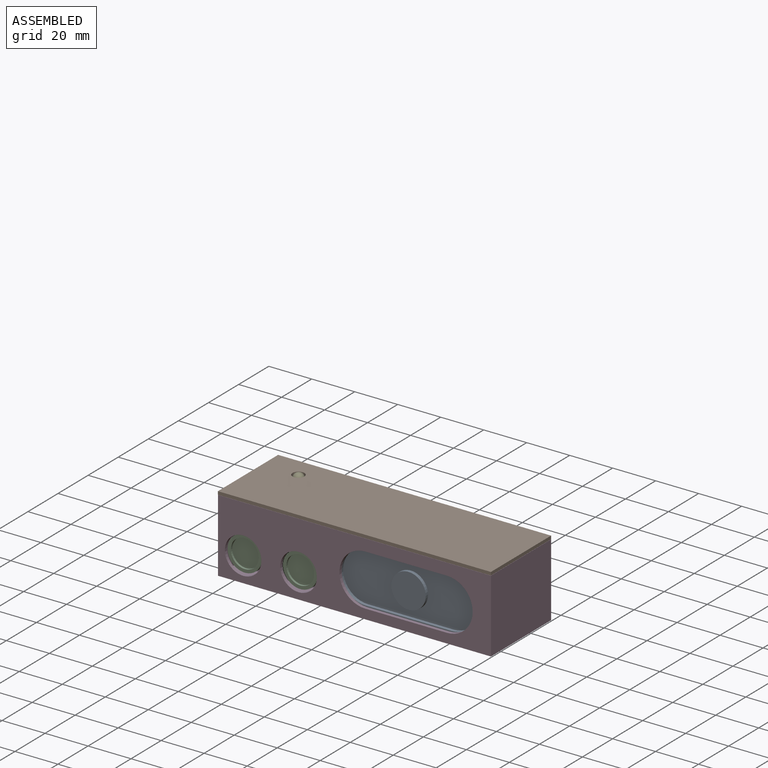
[diagram: assembled view]
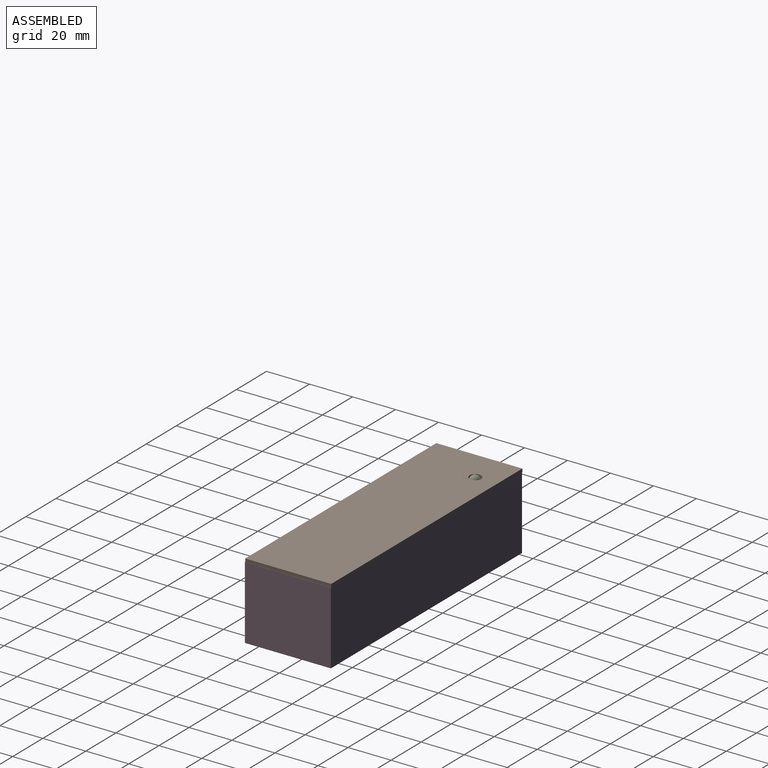
[diagram: assembled view, second angle]
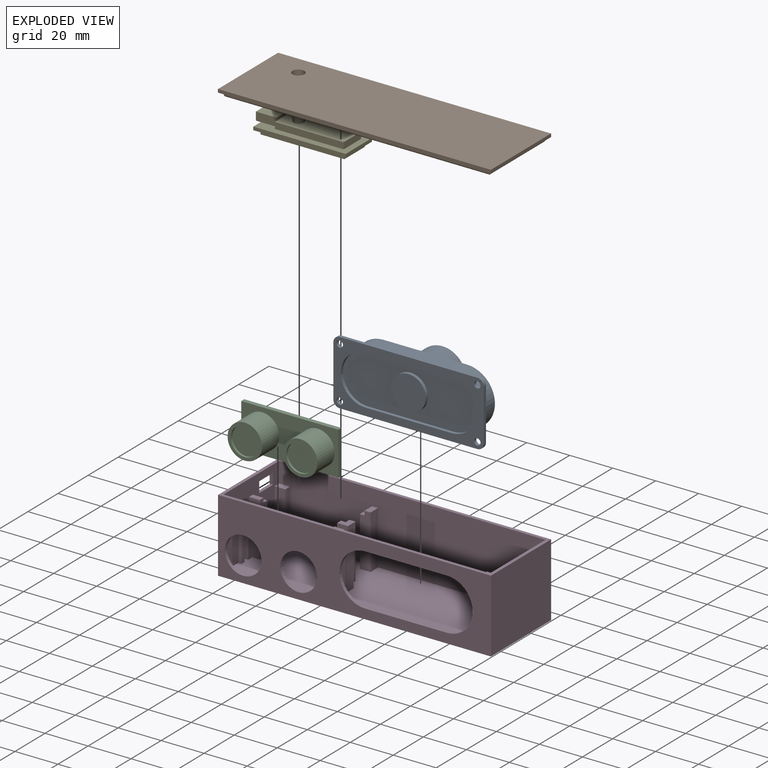
[diagram: exploded view]
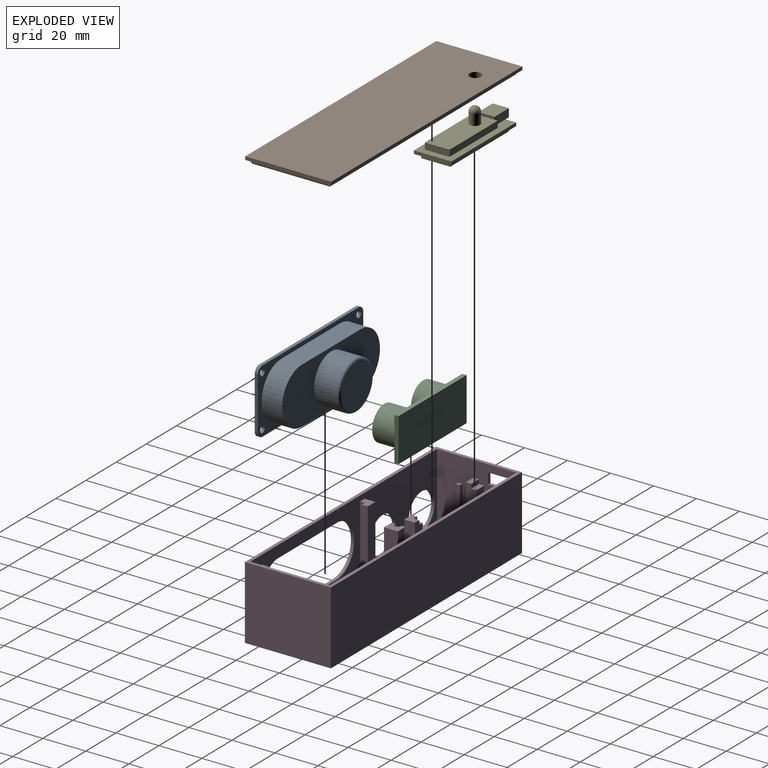
[diagram: exploded view, second angle]
ASSEMBLY  parts=5 mates=4
PART A: 29 faces, bbox 70x30x23 mm
  f0: plane 24x1.5mm, normal (1,0,0), area 36mm2, adj f4,f5,f10,f13
  f1: plane 64x1.5mm, normal (0,1,0), area 96mm2, adj f4,f5,f10,f11
  f2: plane 24x1.5mm, normal (-1,0,0), area 36mm2, adj f4,f5,f11,f12
  f3: plane 64x1.5mm, normal (0,-1,0), area 96mm2, adj f4,f5,f12,f13
  f4: plane 70x30mm, normal (0,0,1), area 728.5mm2, adj f0,f1,f2,f3,f6,f7,f8,f9
  f5: plane 70x30mm, normal (0,0,-1), area 519.1mm2, adj f0,f1,f2,f3,f6,f7,f8,f9
  f6: cylinder r=1.5mm len=3mm, axis (0,0,1), area 14.1mm2, adj f4,f5
  f7: cylinder r=1.5mm len=3mm, axis (0,0,1), area 14.1mm2, adj f4,f5
  f8: cylinder r=1.5mm len=3mm, axis (0,0,1), area 14.1mm2, adj f4,f5
  f9: cylinder r=1.5mm len=3mm, axis (0,0,1), area 14.1mm2, adj f4,f5
  f10: cylinder r=3mm len=3mm, axis (0,0,1), area 7.1mm2, adj f0,f1,f4,f5
  f11: cylinder r=3mm len=3mm, axis (0,0,-1), area 7.1mm2, adj f1,f2,f4,f5
  f12: cylinder r=3mm len=3mm, axis (0,0,1), area 7.1mm2, adj f2,f3,f4,f5
  f13: cylinder r=3mm len=3mm, axis (0,0,-1), area 7.1mm2, adj f0,f3,f4,f5
  f14: plane 40x1.5mm, normal (0,-1,0), area 60mm2, adj f4,f15,f17,f23
  f15: cylinder r=11.5mm len=23mm, axis (0,0,1), area 54.2mm2, adj f4,f14,f16,f23
  f16: plane 40x1.5mm, normal (0,1,0), area 60mm2, adj f4,f15,f17,f23
  f17: cylinder r=11.5mm len=23mm, axis (0,0,1), area 54.2mm2, adj f4,f14,f16,f23
  f18: plane 65x26mm, normal (0,0,-1), area 1147.3mm2, adj f19,f20,f21,f22,f24
  f19: cylinder r=13mm len=26mm, axis (0,0,1), area 388mm2, adj f5,f18,f20,f22
  f20: plane 39x9.5mm, normal (0,1,0), area 370.5mm2, adj f5,f18,f19,f21
  f21: cylinder r=13mm len=26mm, axis (0,0,1), area 388mm2, adj f5,f18,f20,f22
  f22: plane 39x9.5mm, normal (0,-1,0), area 370.5mm2, adj f5,f18,f19,f21
  f23: plane 63x23mm, normal (0,0,1), area 1134.4mm2, adj f14,f15,f16,f17,f27
  f24: cylinder r=11.25mm len=22.5mm, axis (0,0,1), area 777.5mm2, adj f18,f26
  f25: plane 20.5x20.5mm, normal (0,0,-1), area 330.1mm2, adj f26
  f26: torus R=10.25mm, axis (0,0,-1), area 107.4mm2, adj f24,f25
  f27: cylinder r=8mm len=16mm, axis (0,0,-1), area 75.4mm2, adj f23,f28
  f28: plane 16x16mm, normal (0,0,1), area 201.1mm2, adj f27
PART B: 16 faces, bbox 127x40x3.5 mm
  f0: plane 127x40mm, normal (0,0,1), area 524.2mm2, adj f1,f2,f3,f4,f6,f7,f8,f9
  f1: plane 40x1.5mm, normal (1,0,0), area 60mm2, adj f0,f2,f4,f5
  f2: plane 127x1.5mm, normal (0,1,0), area 190.5mm2, adj f0,f1,f3,f5
  f3: plane 40x1.5mm, normal (-1,0,0), area 60mm2, adj f0,f2,f4,f5
  f4: plane 127x1.5mm, normal (0,-1,0), area 190.5mm2, adj f0,f1,f3,f5
  f5: plane 127x40mm, normal (0,0,-1), area 5056.2mm2, adj f1,f2,f3,f4,f11
  f6: plane 36.8x1mm, normal (1,0,0), area 36.8mm2, adj f0,f7,f9,f12
  f7: plane 123.8x1mm, normal (0,1,0), area 123.8mm2, adj f0,f6,f8,f13
  f8: plane 36.8x1mm, normal (-1,0,0), area 36.8mm2, adj f0,f7,f9,f15
  f9: plane 123.8x1mm, normal (0,-1,0), area 123.8mm2, adj f0,f6,f8,f14
  f10: plane 121.8x34.8mm, normal (0,0,1), area 4214.9mm2, adj f11,f12,f13,f14,f15
  f11: cylinder r=2.75mm len=5.5mm, axis (0,0,1), area 60.5mm2, adj f5,f10
  f12: cylinder r=1mm len=36.8mm, axis (0,-1,0), area 56.7mm2, adj f6,f10,f13,f14
  f13: cylinder r=1mm len=123.8mm, axis (1,0,0), area 193.3mm2, adj f7,f10,f12,f15
  f14: cylinder r=1mm len=123.8mm, axis (-1,0,0), area 193.3mm2, adj f9,f10,f12,f15
  f15: cylinder r=1mm len=36.8mm, axis (0,1,0), area 56.7mm2, adj f8,f10,f13,f14
PART C: 14 faces, bbox 45.2x20.2x13.5 mm
  f0: plane 20.2x2mm, normal (1,0,0), area 40.4mm2, adj f1,f3,f4,f5
  f1: plane 45.2x2mm, normal (0,1,0), area 90.4mm2, adj f0,f2,f4,f5
  f2: plane 20.2x2mm, normal (-1,0,0), area 40.4mm2, adj f1,f3,f4,f5
  f3: plane 45.2x2mm, normal (0,-1,0), area 90.4mm2, adj f0,f2,f4,f5
  f4: plane 45.2x20.2mm, normal (0,0,1), area 510.9mm2, adj f0,f1,f2,f3,f6,f8
  f5: plane 45.2x20.2mm, normal (0,0,-1), area 913mm2, adj f0,f1,f2,f3
  f6: cylinder r=8mm len=16mm, axis (0,0,-1), area 578.1mm2, adj f4,f7
  f7: plane 16x16mm, normal (0,0,1), area 68.3mm2, adj f6,f10
  f8: cylinder r=8mm len=16mm, axis (0,0,-1), area 578.1mm2, adj f4,f9
  f9: plane 16x16mm, normal (0,0,1), area 68.3mm2, adj f8,f12
  f10: cylinder r=6.5mm len=13mm, axis (0,0,1), area 40.8mm2, adj f7,f11
  f11: plane 13x13mm, normal (0,0,1), area 132.7mm2, adj f10
  f12: cylinder r=6.5mm len=13mm, axis (0,0,1), area 40.8mm2, adj f9,f13
  f13: plane 13x13mm, normal (0,0,1), area 132.7mm2, adj f12
PART D: 72 faces, bbox 127x40x34 mm
  f0: plane 40x34mm, normal (-1,0,0), area 1315mm2, adj f11,f13,f15,f16,f68,f69,f70,f71
  f1: plane 37x32.5mm, normal (1,0,0), area 884.5mm2, adj f3,f5,f9,f10,f13,f17,f18,f19
  f2: plane 5x2.8mm, normal (0,0,1), area 14mm2, adj f7,f17,f55,f64
  f3: plane 23x5mm, normal (0,-1,0), area 115mm2, adj f1,f4,f9,f67
  f4: plane 23x3mm, normal (1,0,0), area 69mm2, adj f3,f9,f17,f67
  f5: plane 23x5mm, normal (0,1,0), area 115mm2, adj f1,f9,f53,f65
  f6: plane 23x5mm, normal (-1,0,0), area 115mm2, adj f7,f9,f17,f63
  f7: plane 25x5mm, normal (0,-1,0), area 120.6mm2, adj f2,f6,f9,f55,f63,f64
  f8: plane 25x5mm, normal (0,1,0), area 120.6mm2, adj f9,f56,f58,f59,f60,f62
  f9: plane 124x37mm, normal (0,0,1), area 4422.6mm2, adj f1,f3,f4,f5,f6,f7,f8,f10
  f10: plane 124x32.5mm, normal (0,1,0), area 2035mm2, adj f1,f9,f12,f13,f35,f36,f37,f38
  f11: plane 127x34mm, normal (0,-1,0), area 2499.7mm2, adj f0,f13,f14,f16,f35,f36,f48,f49
  f12: plane 37x32.5mm, normal (-1,0,0), area 1052.5mm2, adj f9,f10,f13,f17,f43,f44
  f13: plane 127x40mm, normal (0,0,1), area 492mm2, adj f0,f1,f10,f11,f12,f14,f15,f17
  f14: plane 40x34mm, normal (1,0,0), area 1360mm2, adj f11,f13,f15,f16
  f15: plane 127x34mm, normal (0,1,0), area 4318mm2, adj f0,f13,f14,f16
  f16: plane 127x40mm, normal (0,0,-1), area 5080mm2, adj f0,f11,f14,f15
  f17: plane 124x32.5mm, normal (0,-1,0), area 3794.4mm2, adj f1,f2,f4,f6,f9,f12,f13,f55
  f18: plane 21x1.5mm, normal (0,1,0), area 31.5mm2, adj f1,f9,f20,f21
  f19: plane 21x1.5mm, normal (0,-1,0), area 31.5mm2, adj f1,f9,f20,f21
  f20: plane 21x2mm, normal (1,0,0), area 42mm2, adj f9,f18,f19,f21
  f21: plane 2x1.5mm, normal (0,0,1), area 3mm2, adj f1,f18,f19,f20
  f22: plane 21x1.5mm, normal (0,1,0), area 31.5mm2, adj f1,f9,f24,f25
  f23: plane 21x1.5mm, normal (0,-1,0), area 31.5mm2, adj f1,f9,f24,f25
  f24: plane 21x2mm, normal (1,0,0), area 42mm2, adj f9,f22,f23,f25
  f25: plane 2x1.5mm, normal (0,0,1), area 3mm2, adj f1,f22,f23,f24
  f26: plane 21x6.5mm, normal (1,0,0), area 136.5mm2, adj f9,f27,f33,f34
  f27: plane 21x5mm, normal (0,1,0), area 105mm2, adj f9,f26,f28,f34
  f28: plane 21x2mm, normal (-1,0,0), area 42mm2, adj f9,f27,f29,f34
  f29: plane 21x1.5mm, normal (0,-1,0), area 31.5mm2, adj f9,f28,f30,f34
  f30: plane 21x2.5mm, normal (-1,0,0), area 52.5mm2, adj f9,f29,f31,f34
  f31: plane 21x1.5mm, normal (0,1,0), area 31.5mm2, adj f9,f30,f32,f34
  f32: plane 21x2mm, normal (-1,0,0), area 42mm2, adj f9,f31,f33,f34
  f33: plane 21x5mm, normal (0,-1,0), area 105mm2, adj f9,f26,f32,f34
  f34: plane 6.5x5mm, normal (0,0,1), area 28.7mm2, adj f26,f27,f28,f29,f30,f31,f32,f33
  f35: cylinder r=8.5mm len=17mm, axis (0,-1,0), area 80.1mm2, adj f10,f11
  f36: cylinder r=8.5mm len=17mm, axis (0,-1,0), area 80.1mm2, adj f10,f11
  f37: plane 30x5mm, normal (-1,0,0), area 150mm2, adj f9,f10,f41,f42
  f38: plane 30x2.2mm, normal (1,0,0), area 66mm2, adj f9,f10,f39,f42
  f39: plane 30x2mm, normal (0,-1,0), area 60mm2, adj f9,f38,f40,f42
  f40: plane 30x2.8mm, normal (1,0,0), area 84mm2, adj f9,f39,f41,f42
  f41: plane 30x5mm, normal (0,1,0), area 150mm2, adj f9,f37,f40,f42
  f42: plane 5x5mm, normal (0,0,1), area 20.6mm2, adj f10,f37,f38,f39,f40,f41
  f43: plane 30x4.89mm, normal (0,1,0), area 146.6mm2, adj f9,f12,f44,f45
  f44: plane 5x4.89mm, normal (0,0,1), area 20mm2, adj f10,f12,f43,f45,f46,f47
  f45: plane 30x2.8mm, normal (-1,0,0), area 84mm2, adj f9,f43,f44,f46
  f46: plane 30x2mm, normal (0,-1,0), area 60mm2, adj f9,f44,f45,f47
  f47: plane 30x2.2mm, normal (-1,0,0), area 66mm2, adj f9,f10,f44,f46
  f48: plane 38x1.5mm, normal (0,0,-1), area 57mm2, adj f10,f11,f49,f51
  f49: cylinder r=12mm len=24mm, axis (0,-1,0), area 56.5mm2, adj f10,f11,f48,f50
  f50: plane 38x1.5mm, normal (0,0,1), area 57mm2, adj f10,f11,f49,f51
  f51: cylinder r=12mm len=24mm, axis (0,-1,0), area 56.5mm2, adj f10,f11,f48,f50
  f52: plane 25x5mm, normal (0,-1,0), area 125mm2, adj f1,f9,f53,f54
  f53: plane 25x5mm, normal (1,0,0), area 120mm2, adj f5,f9,f52,f54,f65,f66
  f54: plane 5x2.5mm, normal (0,0,1), area 12.5mm2, adj f1,f52,f53,f66
  f55: plane 25x5mm, normal (1,0,0), area 125mm2, adj f2,f7,f9,f17
  f56: plane 25x5mm, normal (-1,0,0), area 120mm2, adj f8,f9,f57,f59,f60,f61
  f57: plane 25x5mm, normal (0,-1,0), area 125mm2, adj f9,f56,f58,f59
  f58: plane 25x5mm, normal (1,0,0), area 125mm2, adj f8,f9,f57,f59
  f59: plane 5x5mm, normal (0,0,1), area 19.5mm2, adj f8,f56,f57,f58,f61,f62
  f60: plane 2.5x2.2mm, normal (0,0,1), area 5.5mm2, adj f8,f56,f61,f62
  f61: plane 2.2x2mm, normal (0,1,0), area 4.4mm2, adj f56,f59,f60,f62
  f62: plane 2.5x2mm, normal (-1,0,0), area 5mm2, adj f8,f59,f60,f61
  f63: plane 5x2.2mm, normal (0,0,1), area 11mm2, adj f6,f7,f17,f64
  f64: plane 5x2mm, normal (-1,0,0), area 10mm2, adj f2,f7,f17,f63
  f65: plane 5x2.5mm, normal (0,0,1), area 12.5mm2, adj f1,f5,f53,f66
  f66: plane 5x2mm, normal (0,1,0), area 10mm2, adj f1,f53,f54,f65
  f67: plane 5x3mm, normal (0,0,1), area 15mm2, adj f1,f3,f4,f17
  f68: plane 5x1.5mm, normal (0,1,0), area 7.5mm2, adj f0,f1,f69,f71
  f69: plane 9x1.5mm, normal (0,0,-1), area 13.5mm2, adj f0,f1,f68,f70
  f70: plane 5x1.5mm, normal (0,-1,0), area 7.5mm2, adj f0,f1,f69,f71
  f71: plane 9x1.5mm, normal (0,0,1), area 13.5mm2, adj f0,f1,f68,f70
PART E: 24 faces, bbox 45.3x17.5x14 mm
  f0: plane 43x17.5mm, normal (0,0,1), area 330.5mm2, adj f1,f2,f3,f4,f6,f7,f8,f12
  f1: plane 43x1.5mm, normal (0,1,0), area 64.5mm2, adj f0,f2,f4,f5
  f2: plane 17.5x1.5mm, normal (-1,0,0), area 26.3mm2, adj f0,f1,f3,f5
  f3: plane 43x1.5mm, normal (0,-1,0), area 64.5mm2, adj f0,f2,f4,f5
  f4: plane 17.5x1.5mm, normal (1,0,0), area 26.3mm2, adj f0,f1,f3,f5,f11
  f5: plane 43x17.5mm, normal (0,0,-1), area 226mm2, adj f1,f2,f3,f4,f17,f18,f19,f20
  f6: plane 9.5x3.8mm, normal (0,1,0), area 36.1mm2, adj f0,f7,f9,f10,f11
  f7: plane 7.5x3.8mm, normal (-1,0,0), area 28.5mm2, adj f0,f6,f8,f10
  f8: plane 9.5x3.8mm, normal (0,-1,0), area 36.1mm2, adj f0,f7,f9,f10,f11
  f9: plane 7.5x3.8mm, normal (1,0,0), area 28.5mm2, adj f6,f8,f10,f11
  f10: plane 9.5x7.5mm, normal (0,0,1), area 71.3mm2, adj f6,f7,f8,f9
  f11: plane 7.5x2.3mm, normal (0,0,-1), area 17.3mm2, adj f4,f6,f8,f9
  f12: plane 32x3mm, normal (0,1,0), area 96mm2, adj f0,f13,f15,f16
  f13: plane 11.5x3mm, normal (-1,0,0), area 34.5mm2, adj f0,f12,f14,f16
  f14: plane 32x3mm, normal (0,-1,0), area 96mm2, adj f0,f13,f15,f16
  f15: plane 11.5x3mm, normal (1,0,0), area 34.5mm2, adj f0,f12,f14,f16
  f16: plane 32x11.5mm, normal (0,0,1), area 349.9mm2, adj f12,f13,f14,f15,f22
  f17: plane 39x2mm, normal (0,-1,0), area 78mm2, adj f5,f18,f20,f21
  f18: plane 13.5x2mm, normal (-1,0,0), area 27mm2, adj f5,f17,f19,f21
  f19: plane 39x2mm, normal (0,1,0), area 78mm2, adj f5,f18,f20,f21
  f20: plane 13.5x2mm, normal (1,0,0), area 27mm2, adj f5,f17,f19,f21
  f21: plane 39x13.5mm, normal (0,0,-1), area 526.5mm2, adj f17,f18,f19,f20
  f22: cylinder r=2.4mm len=5.1mm, axis (0,0,-1), area 76.9mm2, adj f16,f23
  f23: sphere r=2.4mm, area 36.2mm2, adj f22
PLACE A rot(axis=(1,0,0),90deg) t=(113.25,-50.14,-37.26)mm
PLACE B rot(axis=(-1,0,0),180deg) t=(89.04,-33.04,-18.26)mm
PLACE C rot(axis=(1,0,0),90deg) t=(49.74,-37.84,-42.16)mm
PLACE D t=(89.14,-33.14,-53.76)mm
PLACE E rot(axis=(0,0,-1),180deg) t=(48.84,-23.39,-29.26)mm
MATE fastened D.f13 <-> B.f0  axis (0,0,1) through (27.14,-14.64,-19.76)mm
MATE fastened D.f60 <-> E.f5  axis (0,0,1) through (70.34,-32.14,-29.26)mm
MATE fastened D.f9 <-> C.f3  axis (0,0,1) through (27.14,-39.84,-52.26)mm
MATE fastened A.f3 <-> D.f9  axis (0,0,1) through (148.25,-51.64,-52.26)mm
